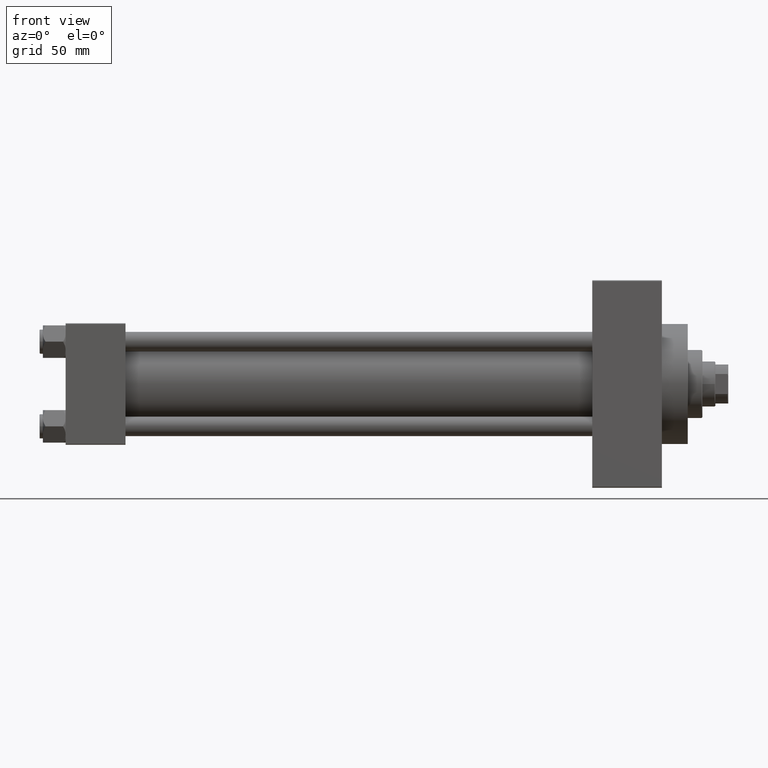
[diagram: clean part render]
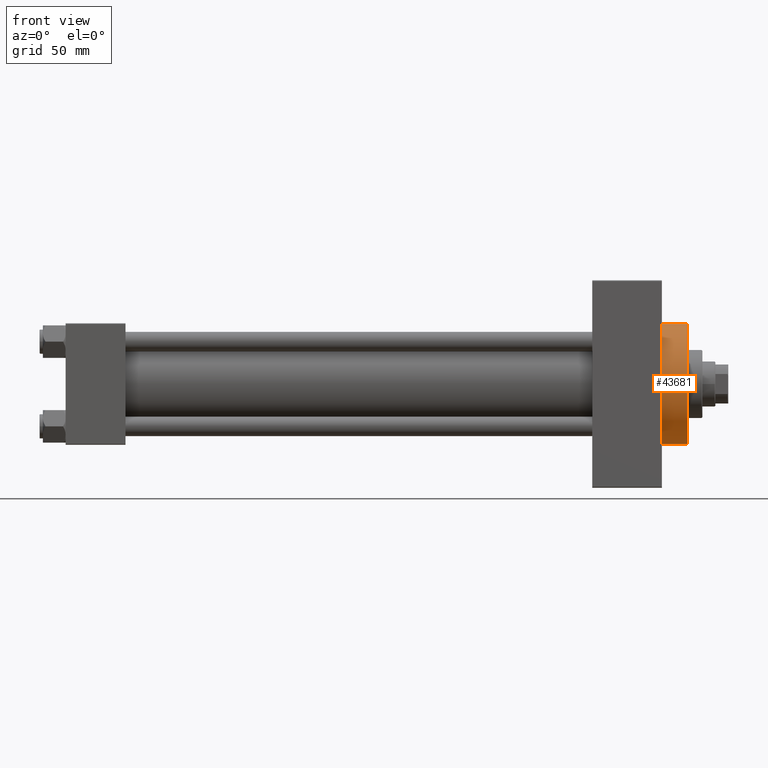
[diagram: same view with one face highlighted and labeled with its STEP entity id]
A machine part, front view. The second image highlights one B-rep face of the part: STEP entity #43681.
In plain terms, the highlighted cylindrical surface (partial cylindrical patch) has radius 37 mm, axis along (-1, -0, -0).
Its self-contained STEP definition (entity closure, byte-faithful):
#357 = CARTESIAN_POINT ( 'NONE',  ( 367.9999999999999432, 0.000000000000000000, 37.00000000000000000 ) ) ;
#1694 = EDGE_CURVE ( 'NONE', #33081, #29004, #28808, .T. ) ;
#2040 = ORIENTED_EDGE ( 'NONE', *, *, #1694, .F. ) ;
#3114 = CARTESIAN_POINT ( 'NONE',  ( 383.9999999999999432, 0.000000000000000000, 37.00000000000000000 ) ) ;
#4265 = CYLINDRICAL_SURFACE ( 'NONE', #26179, 37.00000000000000000 ) ;
#4770 = DIRECTION ( 'NONE',  ( -1.000000000000000000, -0.000000000000000000, -0.000000000000000000 ) ) ;
#5164 = ORIENTED_EDGE ( 'NONE', *, *, #31267, .T. ) ;
#6162 = CARTESIAN_POINT ( 'NONE',  ( 367.9999999999999432, 0.000000000000000000, 0.000000000000000000 ) ) ;
#9219 = CARTESIAN_POINT ( 'NONE',  ( 367.9999999999999432, 4.531193156845206793E-15, -37.00000000000000000 ) ) ;
#9326 = DIRECTION ( 'NONE',  ( -1.000000000000000000, -0.000000000000000000, -0.000000000000000000 ) ) ;
#10856 = CARTESIAN_POINT ( 'NONE',  ( 383.9999999999999432, 0.000000000000000000, 0.000000000000000000 ) ) ;
#12048 = ORIENTED_EDGE ( 'NONE', *, *, #46077, .T. ) ;
#12408 = VECTOR ( 'NONE', #9326, 1000.000000000000000 ) ;
#14228 = CIRCLE ( 'NONE', #32512, 37.00000000000000000 ) ;
#16790 = CARTESIAN_POINT ( 'NONE',  ( 383.9999999999999432, 4.531193156845206793E-15, -37.00000000000000000 ) ) ;
#17993 = VERTEX_POINT ( 'NONE', #9219 ) ;
#18554 = DIRECTION ( 'NONE',  ( 0.000000000000000000, 0.000000000000000000, -1.000000000000000000 ) ) ;
#20342 = ORIENTED_EDGE ( 'NONE', *, *, #35981, .F. ) ;
#23686 = DIRECTION ( 'NONE',  ( 0.000000000000000000, 0.000000000000000000, 1.000000000000000000 ) ) ;
#24887 = EDGE_LOOP ( 'NONE', ( #20342, #2040, #5164, #12048 ) ) ;
#26018 = CARTESIAN_POINT ( 'NONE',  ( 383.9999999999999432, 0.000000000000000000, 0.000000000000000000 ) ) ;
#26179 = AXIS2_PLACEMENT_3D ( 'NONE', #10856, #4770, #23686 ) ;
#28808 = CIRCLE ( 'NONE', #34316, 37.00000000000000000 ) ;
#29004 = VERTEX_POINT ( 'NONE', #30242 ) ;
#30242 = CARTESIAN_POINT ( 'NONE',  ( 383.9999999999999432, 4.531193156845206793E-15, -37.00000000000000000 ) ) ;
#31267 = EDGE_CURVE ( 'NONE', #33081, #46318, #35658, .T. ) ;
#32512 = AXIS2_PLACEMENT_3D ( 'NONE', #6162, #36529, #44495 ) ;
#33081 = VERTEX_POINT ( 'NONE', #3114 ) ;
#33492 = FACE_OUTER_BOUND ( 'NONE', #24887, .T. ) ;
#34316 = AXIS2_PLACEMENT_3D ( 'NONE', #26018, #37468, #18554 ) ;
#34597 = VECTOR ( 'NONE', #36150, 1000.000000000000000 ) ;
#35149 = CARTESIAN_POINT ( 'NONE',  ( 383.9999999999999432, 0.000000000000000000, 37.00000000000000000 ) ) ;
#35658 = LINE ( 'NONE', #35149, #34597 ) ;
#35981 = EDGE_CURVE ( 'NONE', #29004, #17993, #47429, .T. ) ;
#36150 = DIRECTION ( 'NONE',  ( -1.000000000000000000, -0.000000000000000000, -0.000000000000000000 ) ) ;
#36529 = DIRECTION ( 'NONE',  ( 1.000000000000000000, 0.000000000000000000, 0.000000000000000000 ) ) ;
#37468 = DIRECTION ( 'NONE',  ( 1.000000000000000000, 0.000000000000000000, 0.000000000000000000 ) ) ;
#43681 = ADVANCED_FACE ( 'NONE', ( #33492 ), #4265, .T. ) ;
#44495 = DIRECTION ( 'NONE',  ( 0.000000000000000000, 0.000000000000000000, -1.000000000000000000 ) ) ;
#46077 = EDGE_CURVE ( 'NONE', #46318, #17993, #14228, .T. ) ;
#46318 = VERTEX_POINT ( 'NONE', #357 ) ;
#47429 = LINE ( 'NONE', #16790, #12408 ) ;